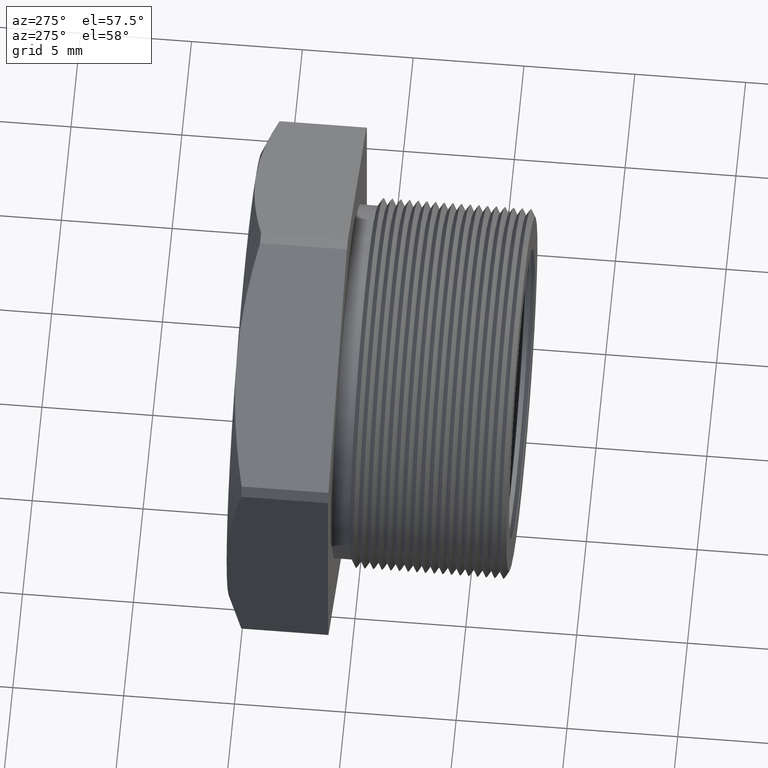
[diagram: clean part render]
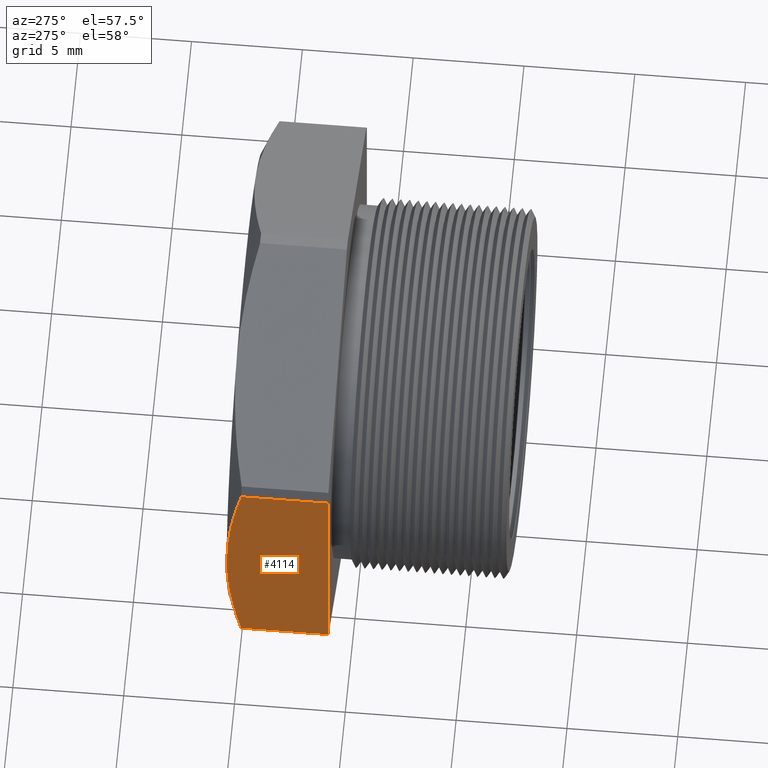
[diagram: same view with one face highlighted and labeled with its STEP entity id]
A machine part, auxiliary view. The second image highlights one B-rep face of the part: STEP entity #4114.
In plain terms, the highlighted planar face has unit normal (-1, 0, 0).
Its self-contained STEP definition (entity closure, byte-faithful):
#2357 = CARTESIAN_POINT ( 'NONE',  ( -0.3949999999999999600, 0.4075548905829479200, 0.0000000000000000000 ) ) ;
#2514 = VERTEX_POINT ( 'NONE', #6789 ) ;
#2626 = VERTEX_POINT ( 'NONE', #6783 ) ;
#2731 = EDGE_CURVE ( 'NONE', #2514, #2626, #6774, .T. ) ;
#2927 = VERTEX_POINT ( 'NONE', #6822 ) ;
#3161 = VERTEX_POINT ( 'NONE', #6819 ) ;
#3193 = EDGE_CURVE ( 'NONE', #3161, #2927, #6809, .T. ) ;
#3817 = EDGE_LOOP ( 'NONE', ( #3856, #3850, #4041, #4101, #4109 ) ) ;
#3850 = ORIENTED_EDGE ( 'NONE', *, *, #3911, .T. ) ;
#3856 = ORIENTED_EDGE ( 'NONE', *, *, #3193, .F. ) ;
#3911 = EDGE_CURVE ( 'NONE', #3161, #5388, #6893, .T. ) ;
#4041 = ORIENTED_EDGE ( 'NONE', *, *, #4096, .T. ) ;
#4096 = EDGE_CURVE ( 'NONE', #5388, #2626, #6929, .T. ) ;
#4101 = ORIENTED_EDGE ( 'NONE', *, *, #2731, .F. ) ;
#4102 = EDGE_CURVE ( 'NONE', #2927, #2514, #6971, .T. ) ;
#4109 = ORIENTED_EDGE ( 'NONE', *, *, #4102, .F. ) ;
#4114 = ADVANCED_FACE ( 'NONE', ( #6977 ), #6975, .T. ) ;
#5388 = VERTEX_POINT ( 'NONE', #2357 ) ;
#6771 = DIRECTION ( 'NONE',  ( 0.0000000000000000000, 1.000000000000000000, 0.0000000000000000000 ) ) ;
#6772 = VECTOR ( 'NONE', #6771, 39.37007874015748100 ) ;
#6773 = CARTESIAN_POINT ( 'NONE',  ( -0.3949999999999999600, 0.0000000000000000000, -0.2162061284977833100 ) ) ;
#6774 = LINE ( 'NONE', #6773, #6772 ) ;
#6783 = CARTESIAN_POINT ( 'NONE',  ( -0.3949999999999999600, 0.3817680770869766300, -0.2162061284977833100 ) ) ;
#6789 = CARTESIAN_POINT ( 'NONE',  ( -0.3949999999999999600, 0.2275548905829479800, -0.2162061284977833100 ) ) ;
#6806 = DIRECTION ( 'NONE',  ( -0.0000000000000000000, -1.000000000000000000, -0.0000000000000000000 ) ) ;
#6807 = VECTOR ( 'NONE', #6806, 39.37007874015748100 ) ;
#6808 = CARTESIAN_POINT ( 'NONE',  ( -0.3949999999999999600, 0.0000000000000000000, 0.2162061284977833100 ) ) ;
#6809 = LINE ( 'NONE', #6808, #6807 ) ;
#6819 = CARTESIAN_POINT ( 'NONE',  ( -0.3949999999999999600, 0.3817680770869766300, 0.2162061284977833100 ) ) ;
#6822 = CARTESIAN_POINT ( 'NONE',  ( -0.3949999999999999600, 0.2275548905829479800, 0.2162061284977833100 ) ) ;
#6893 = B_SPLINE_CURVE_WITH_KNOTS ( 'NONE', 3,
 ( #6949, #6948, #6947, #6946, #6945, #6944, #6943, #6942 ),
 .UNSPECIFIED., .F., .F.,
 ( 4, 2, 2, 4 ),
 ( 0.02234294174929219600, 0.02371398808188863300, 0.02508503441448507000, 0.02782712707967794100 ),
 .UNSPECIFIED. ) ;
#6921 = CARTESIAN_POINT ( 'NONE',  ( -0.3949999999999999600, 0.3817680770869766300, -0.2162061284977833100 ) ) ;
#6922 = CARTESIAN_POINT ( 'NONE',  ( -0.3950000000000000200, 0.3897403225388041400, -0.1805985811599561400 ) ) ;
#6923 = CARTESIAN_POINT ( 'NONE',  ( -0.3949999999999999100, 0.3963013145267781900, -0.1444248888611776600 ) ) ;
#6924 = CARTESIAN_POINT ( 'NONE',  ( -0.3949999999999999600, 0.4052023163134752000, -0.07226241553488024800 ) ) ;
#6925 = CARTESIAN_POINT ( 'NONE',  ( -0.3949999999999999600, 0.4075548905829479700, -0.03614916028105719800 ) ) ;
#6926 = CARTESIAN_POINT ( 'NONE',  ( -0.3949999999999999600, 0.4075548905829479200, 0.0000000000000000000 ) ) ;
#6929 = B_SPLINE_CURVE_WITH_KNOTS ( 'NONE', 3,
 ( #6926, #6925, #6924, #6923, #6922, #6921 ),
 .UNSPECIFIED., .F., .F.,
 ( 4, 2, 4 ),
 ( 0.02782712707967794100, 0.03057070346960624000, 0.03331427985953454300 ),
 .UNSPECIFIED. ) ;
#6942 = CARTESIAN_POINT ( 'NONE',  ( -0.3949999999999999600, 0.4075548905829479200, 0.0000000000000000000 ) ) ;
#6943 = CARTESIAN_POINT ( 'NONE',  ( -0.3949999999999999600, 0.4075548905829479200, 0.03612961083331044800 ) ) ;
#6944 = CARTESIAN_POINT ( 'NONE',  ( -0.3949999999999999600, 0.4052039938632866500, 0.07229510109106211700 ) ) ;
#6945 = CARTESIAN_POINT ( 'NONE',  ( -0.3950000000000000200, 0.3984980868305411600, 0.1265918630045694500 ) ) ;
#6946 = CARTESIAN_POINT ( 'NONE',  ( -0.3950000000000000200, 0.3957301704791911200, 0.1447485127294761400 ) ) ;
#6947 = CARTESIAN_POINT ( 'NONE',  ( -0.3949999999999999100, 0.3893461227504151400, 0.1806917436682455600 ) ) ;
#6948 = CARTESIAN_POINT ( 'NONE',  ( -0.3949999999999999600, 0.3857298768067983800, 0.1985109920498441000 ) ) ;
#6949 = CARTESIAN_POINT ( 'NONE',  ( -0.3949999999999999600, 0.3817680770869766300, 0.2162061284977833100 ) ) ;
#6968 = DIRECTION ( 'NONE',  ( 0.0000000000000000000, 0.0000000000000000000, -1.000000000000000000 ) ) ;
#6969 = VECTOR ( 'NONE', #6968, 39.37007874015748100 ) ;
#6970 = CARTESIAN_POINT ( 'NONE',  ( -0.3949999999999999600, 0.2275548905829479800, 0.0000000000000000000 ) ) ;
#6971 = LINE ( 'NONE', #6970, #6969 ) ;
#6973 = CARTESIAN_POINT ( 'NONE',  ( -0.3949999999999999600, 0.4075548905829479700, 0.2280533563299023400 ) ) ;
#6974 = AXIS2_PLACEMENT_3D ( 'NONE', #6973, #7022, #7021 ) ;
#6975 = PLANE ( 'NONE',  #6974 ) ;
#6977 = FACE_OUTER_BOUND ( 'NONE', #3817, .T. ) ;
#7021 = DIRECTION ( 'NONE',  ( 0.0000000000000000000, 0.0000000000000000000, 1.000000000000000000 ) ) ;
#7022 = DIRECTION ( 'NONE',  ( -1.000000000000000000, 0.0000000000000000000, 0.0000000000000000000 ) ) ;